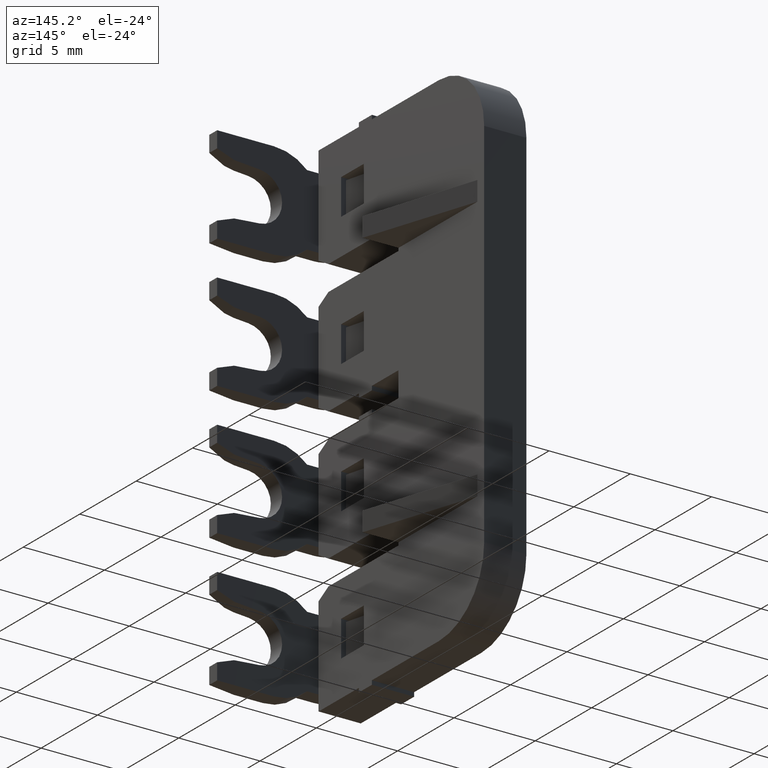
[diagram: clean part render]
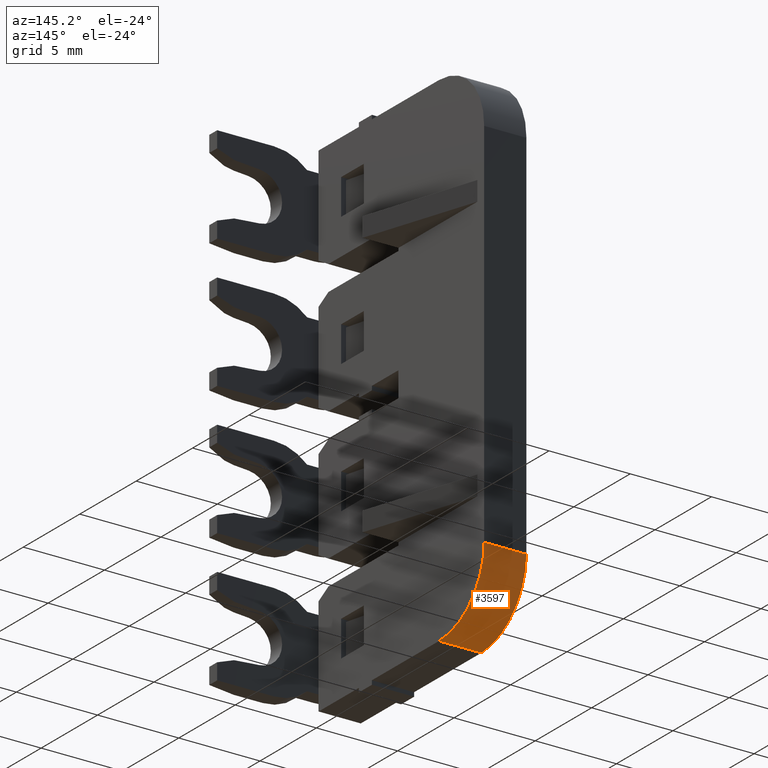
[diagram: same view with one face highlighted and labeled with its STEP entity id]
A machine part, auxiliary view. The second image highlights one B-rep face of the part: STEP entity #3597.
In plain terms, the highlighted cylindrical surface (partial cylindrical patch) has radius 4 mm, axis along (-1, -0, 0).
Its self-contained STEP definition (entity closure, byte-faithful):
#4 = VECTOR ( 'NONE', #3457, 1000.000000000000000 ) ;
#41 = VECTOR ( 'NONE', #3404, 1000.000000000000000 ) ;
#89 = AXIS2_PLACEMENT_3D ( 'NONE', #2267, #2276, #2323 ) ;
#90 = AXIS2_PLACEMENT_3D ( 'NONE', #2274, #2305, #2304 ) ;
#92 = CIRCLE ( 'NONE', #90, 4.000000000000003600 ) ;
#105 = CIRCLE ( 'NONE', #89, 4.000000000000003600 ) ;
#529 = AXIS2_PLACEMENT_3D ( 'NONE', #5393, #5369, #5364 ) ;
#1851 = EDGE_CURVE ( 'NONE', #5138, #4438, #3421, .T. ) ;
#1869 = EDGE_CURVE ( 'NONE', #5144, #4457, #3426, .T. ) ;
#1891 = EDGE_CURVE ( 'NONE', #5144, #4438, #92, .T. ) ;
#1901 = EDGE_CURVE ( 'NONE', #5138, #4457, #105, .T. ) ;
#2267 = CARTESIAN_POINT ( 'NONE',  ( 1512.445209356660100, 1090.934526901996200, -19.69999999999999900 ) ) ;
#2274 = CARTESIAN_POINT ( 'NONE',  ( 1515.045209356660100, 1090.934526901996200, -19.70000000000000600 ) ) ;
#2276 = DIRECTION ( 'NONE',  ( -1.000000000000000000, -3.538835890992685300E-015, 3.497202527569245500E-015 ) ) ;
#2304 = DIRECTION ( 'NONE',  ( 0.0000000000000000000, -1.000000000000000000, 0.0000000000000000000 ) ) ;
#2305 = DIRECTION ( 'NONE',  ( 1.000000000000000000, 3.538835890992685300E-015, -3.250333119651810100E-015 ) ) ;
#2323 = DIRECTION ( 'NONE',  ( 0.0000000000000000000, 1.000000000000000000, 0.0000000000000000000 ) ) ;
#3403 = CARTESIAN_POINT ( 'NONE',  ( 1515.045209356660100, 1094.934526901996200, -19.69999999999999900 ) ) ;
#3404 = DIRECTION ( 'NONE',  ( 1.000000000000000000, 3.538835890992685300E-015, -3.039180497173570300E-015 ) ) ;
#3421 = LINE ( 'NONE', #3403, #41 ) ;
#3426 = LINE ( 'NONE', #3440, #4 ) ;
#3440 = CARTESIAN_POINT ( 'NONE',  ( 1512.445209356660100, 1090.934526901996200, -23.69999999999999900 ) ) ;
#3457 = DIRECTION ( 'NONE',  ( -1.000000000000000000, -3.538835890992685300E-015, 3.039180497173570300E-015 ) ) ;
#3597 = ADVANCED_FACE ( 'NONE', ( #5368 ), #5397, .T. ) ;
#4039 = CARTESIAN_POINT ( 'NONE',  ( 1515.045209356660100, 1094.934526901996200, -19.69999999999999900 ) ) ;
#4049 = CARTESIAN_POINT ( 'NONE',  ( 1512.445209356660100, 1090.934526901996200, -23.69999999999999900 ) ) ;
#4353 = CARTESIAN_POINT ( 'NONE',  ( 1512.445209356660100, 1094.934526901996200, -19.69999999999999200 ) ) ;
#4405 = CARTESIAN_POINT ( 'NONE',  ( 1515.045209356660100, 1090.934526901996200, -23.70000000000000600 ) ) ;
#4438 = VERTEX_POINT ( 'NONE', #4039 ) ;
#4457 = VERTEX_POINT ( 'NONE', #4049 ) ;
#4627 = EDGE_LOOP ( 'NONE', ( #4845, #4827, #4833, #4924 ) ) ;
#4827 = ORIENTED_EDGE ( 'NONE', *, *, #1891, .F. ) ;
#4833 = ORIENTED_EDGE ( 'NONE', *, *, #1869, .T. ) ;
#4845 = ORIENTED_EDGE ( 'NONE', *, *, #1851, .T. ) ;
#4924 = ORIENTED_EDGE ( 'NONE', *, *, #1901, .F. ) ;
#5138 = VERTEX_POINT ( 'NONE', #4353 ) ;
#5144 = VERTEX_POINT ( 'NONE', #4405 ) ;
#5364 = DIRECTION ( 'NONE',  ( 0.0000000000000000000, 0.0000000000000000000, -1.000000000000000000 ) ) ;
#5368 = FACE_OUTER_BOUND ( 'NONE', #4627, .T. ) ;
#5369 = DIRECTION ( 'NONE',  ( -1.000000000000000000, -3.538835890992685300E-015, 3.003463711734375200E-015 ) ) ;
#5393 = CARTESIAN_POINT ( 'NONE',  ( 1512.445209356660100, 1090.934526901996200, -19.69999999999999900 ) ) ;
#5397 = CYLINDRICAL_SURFACE ( 'NONE', #529, 4.000000000000000000 ) ;